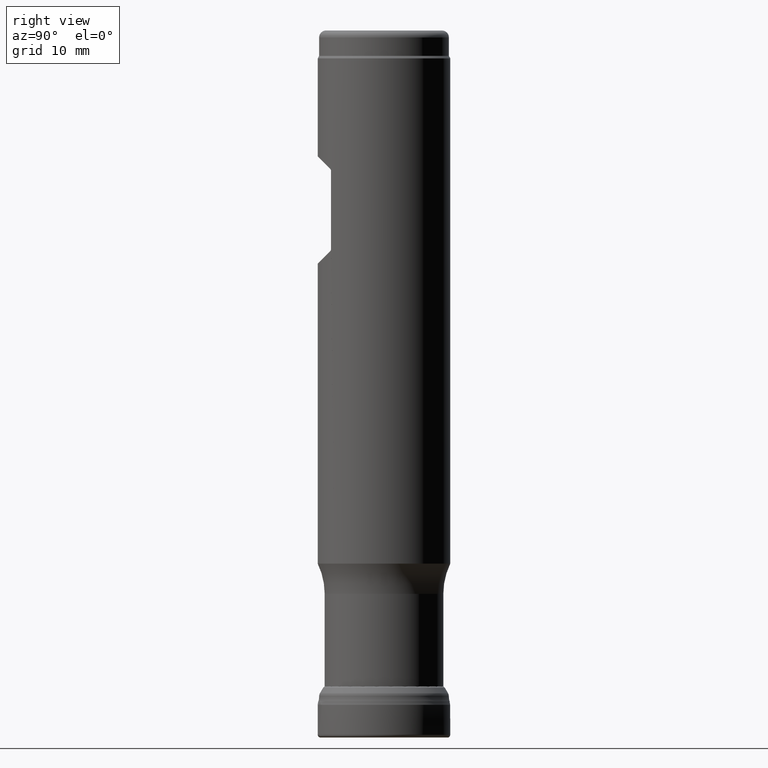
[diagram: clean part render]
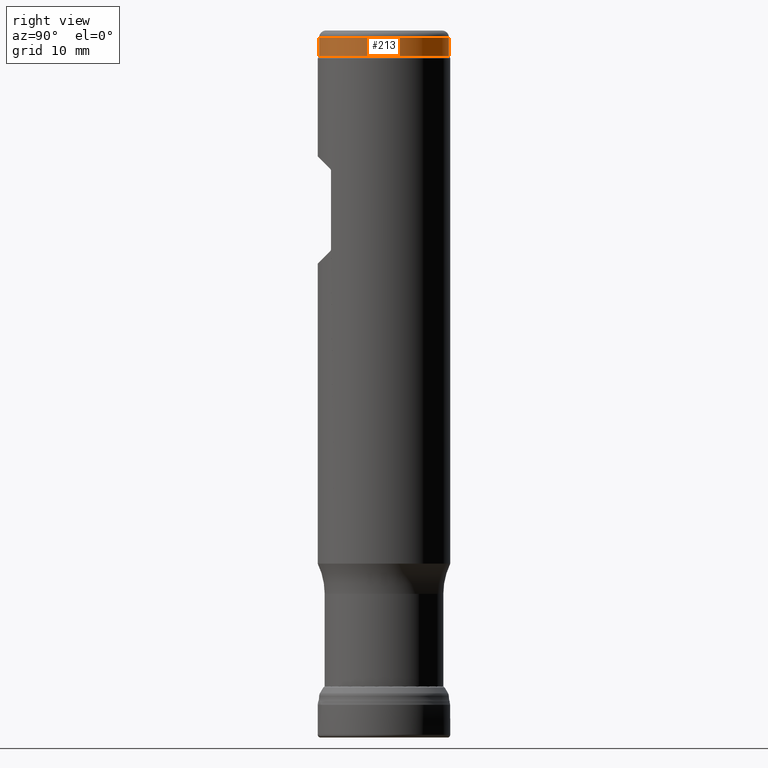
[diagram: same view with one face highlighted and labeled with its STEP entity id]
A machine part, right view. The second image highlights one B-rep face of the part: STEP entity #213.
In plain terms, the highlighted cylindrical surface (bore or boss wall) has radius 9.325 mm, axis along (0, 0, 1).
Its self-contained STEP definition (entity closure, byte-faithful):
#194=CYLINDRICAL_SURFACE('',#757,9.325);
#213=ADVANCED_FACE('',(#275,#276),#194,.T.);
#275=FACE_BOUND('',#362,.T.);
#276=FACE_BOUND('',#363,.T.);
#362=EDGE_LOOP('',(#459));
#363=EDGE_LOOP('',(#460));
#459=ORIENTED_EDGE('',*,*,#618,.T.);
#460=ORIENTED_EDGE('',*,*,#617,.T.);
#565=VERTEX_POINT('',#1288);
#566=VERTEX_POINT('',#1291);
#617=EDGE_CURVE('',#565,#565,#663,.T.);
#618=EDGE_CURVE('',#566,#566,#664,.T.);
#663=CIRCLE('',#754,9.325);
#664=CIRCLE('',#756,9.325);
#754=AXIS2_PLACEMENT_3D('',#1287,#849,#850);
#756=AXIS2_PLACEMENT_3D('',#1290,#853,#854);
#757=AXIS2_PLACEMENT_3D('',#1292,#855,#856);
#849=DIRECTION('',(0.,1.17145536458252E-15,1.));
#850=DIRECTION('',(0.,-1.,1.48823461746E-15));
#853=DIRECTION('',(0.,-1.17145536458252E-15,-1.));
#854=DIRECTION('',(0.,-1.,1.48823461746E-15));
#855=DIRECTION('',(0.,1.17145536458252E-15,1.));
#856=DIRECTION('',(0.,-1.,1.17145536458252E-15));
#1287=CARTESIAN_POINT('',(0.,1.14739847625306E-13,97.9464101615138));
#1288=CARTESIAN_POINT('',(0.,-9.32499999999988,97.9464101615138));
#1290=CARTESIAN_POINT('',(0.,1.17848409677002E-13,100.6));
#1291=CARTESIAN_POINT('',(0.,-9.32499999999988,100.6));
#1292=CARTESIAN_POINT('',(0.,0.,0.));